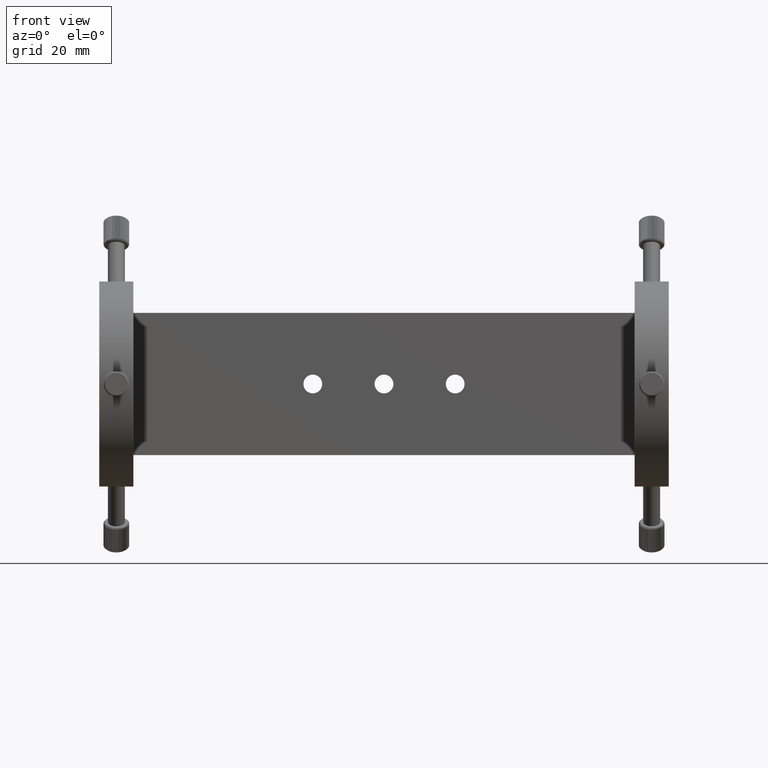
[diagram: clean part render]
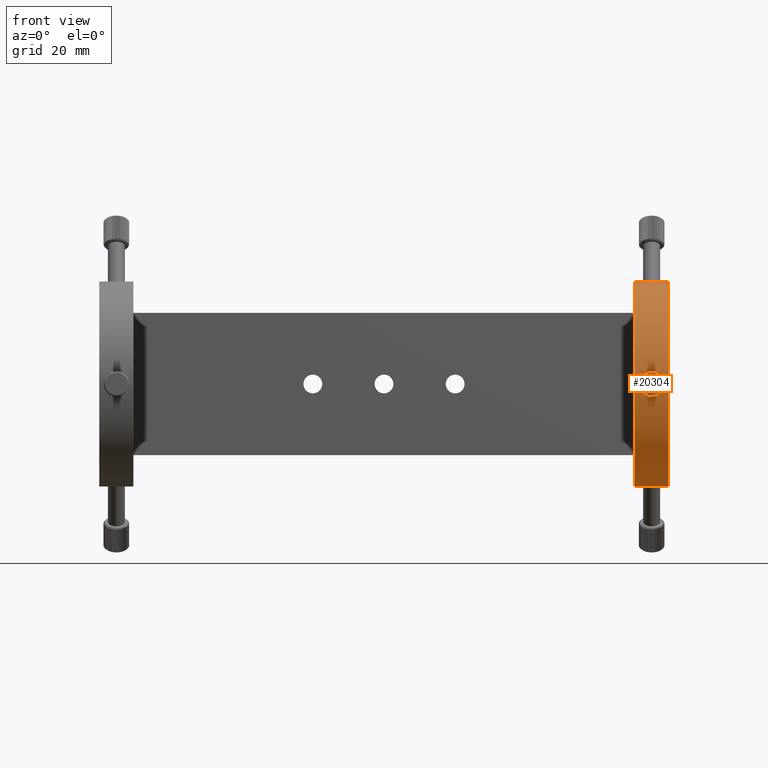
[diagram: same view with one face highlighted and labeled with its STEP entity id]
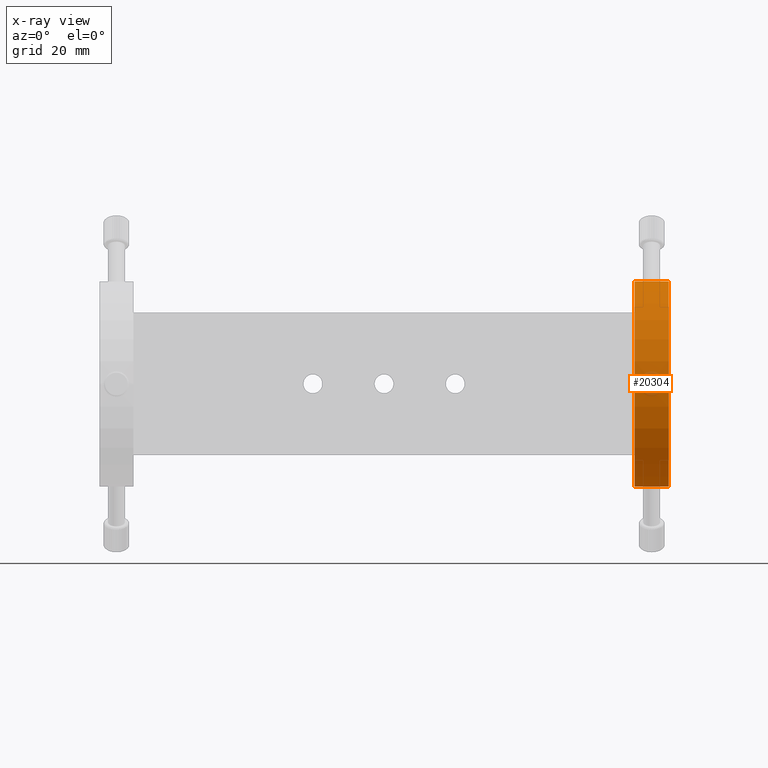
[diagram: x-ray of the same camera — body ghosted, the highlighted face saturated]
A machine part, front view. The second image highlights one B-rep face of the part: STEP entity #20304.
The next image is the same camera in x-ray: the body ghosted, the highlighted face saturated — about 5% of this face is hidden behind the body in this view.
In plain terms, the highlighted cylindrical surface (partial cylindrical patch) has radius 36 mm, axis along (1, -0, 0).
Its self-contained STEP definition (entity closure, byte-faithful):
#70 = CARTESIAN_POINT ( 'NONE',  ( 87.88329328273680100, -88.91181178230394300, -0.3289320257054857400 ) ) ;
#292 = CARTESIAN_POINT ( 'NONE',  ( 89.25973349342855600, -88.84279240741553000, -2.247428021355246200 ) ) ;
#891 = ORIENTED_EDGE ( 'NONE', *, *, #4037, .F. ) ;
#1830 = CARTESIAN_POINT ( 'NONE',  ( 90.03760790793434400, -88.82720209049182400, 2.483563216034591300 ) ) ;
#2150 = CARTESIAN_POINT ( 'NONE',  ( 92.61309516743131100, -88.89616692592505800, 1.109633475276993600 ) ) ;
#2415 = CARTESIAN_POINT ( 'NONE',  ( 92.78717414306528600, -88.90749267773375700, -0.6473099060676932300 ) ) ;
#3003 = CARTESIAN_POINT ( 'NONE',  ( 96.36693914623073500, -52.91295791704508400, 1.247613123922518600E-014 ) ) ;
#3021 = EDGE_LOOP ( 'NONE', ( #22834, #27357, #21886, #891 ) ) ;
#3974 = CARTESIAN_POINT ( 'NONE',  ( 84.36693914623069200, -52.91295791704509100, -35.99999999999998600 ) ) ;
#4037 = EDGE_CURVE ( 'NONE', #30437, #14291, #28616, .T. ) ;
#4407 = CARTESIAN_POINT ( 'NONE',  ( 90.19993888711789500, -88.82605678254677200, 2.499865975313860600 ) ) ;
#4864 = FACE_OUTER_BOUND ( 'NONE', #3021, .T. ) ;
#5126 = CARTESIAN_POINT ( 'NONE',  ( 92.73907458406569000, -88.90424996711708200, -0.8061193940071665900 ) ) ;
#5353 = CARTESIAN_POINT ( 'NONE',  ( 90.69320822322080700, -88.82716696889039600, -2.484073899411212100 ) ) ;
#6050 = DIRECTION ( 'NONE',  ( 0.0000000000000000000, 0.0000000000000000000, -1.000000000000000000 ) ) ;
#6173 = LINE ( 'NONE', #21972, #9761 ) ;
#6322 = EDGE_CURVE ( 'NONE', #25593, #17583, #6173, .T. ) ;
#6469 = CARTESIAN_POINT ( 'NONE',  ( 87.94671836446616500, -88.90749153796285500, 0.6477169415382245700 ) ) ;
#7126 = CARTESIAN_POINT ( 'NONE',  ( 91.47403016538423500, -88.84278820708300400, 2.247496420788219800 ) ) ;
#7593 = CARTESIAN_POINT ( 'NONE',  ( 90.53094874768251500, -88.82605153409085100, -2.499941370660880000 ) ) ;
#7610 = CIRCLE ( 'NONE', #16696, 36.00000000000003600 ) ;
#7825 = CARTESIAN_POINT ( 'NONE',  ( 89.71835201917218700, -88.83154586218924500, -2.419930633638406500 ) ) ;
#8077 = DIRECTION ( 'NONE',  ( -1.000000000000000000, 1.908848771941423400E-032, -5.551115123125761700E-017 ) ) ;
#8724 = CARTESIAN_POINT ( 'NONE',  ( 84.36693914623069200, -52.91295791704508400, 36.00000000000001400 ) ) ;
#8923 = VERTEX_POINT ( 'NONE', #14989 ) ;
#9074 = DIRECTION ( 'NONE',  ( 1.000000000000000000, -1.908848771941423400E-032, 5.551115123125761700E-017 ) ) ;
#9258 = CARTESIAN_POINT ( 'NONE',  ( 87.86693914623070600, -88.91295791704507700, 0.1631498488893484400 ) ) ;
#9272 = EDGE_CURVE ( 'NONE', #17583, #14291, #7610, .T. ) ;
#9584 = CARTESIAN_POINT ( 'NONE',  ( 89.55913214990584900, -88.83481355326652800, 2.371549571165726200 ) ) ;
#9629 = CARTESIAN_POINT ( 'NONE',  ( 92.86693914623069200, -88.91295791704509100, 1.230781437385125800E-014 ) ) ;
#9761 = VECTOR ( 'NONE', #17096, 1000.000000000000000 ) ;
#9895 = CARTESIAN_POINT ( 'NONE',  ( 87.86693914623070600, -88.91295791704507700, 1.169812476534160400E-014 ) ) ;
#10045 = CARTESIAN_POINT ( 'NONE',  ( 84.36693914623069200, -52.91295791704508400, 36.00000000000005000 ) ) ;
#10106 = EDGE_CURVE ( 'NONE', #8923, #12922, #13756, .T. ) ;
#10177 = CARTESIAN_POINT ( 'NONE',  ( 92.61354651345278900, -88.89619459137161100, -1.108877969106821300 ) ) ;
#10287 = CARTESIAN_POINT ( 'NONE',  ( 88.84252043599589400, -88.85813197001691300, -1.988134750782997400 ) ) ;
#10389 = CARTESIAN_POINT ( 'NONE',  ( 87.94722772903854500, -88.90745730486133900, -0.6493764010917568700 ) ) ;
#11555 = VECTOR ( 'NONE', #12699, 1000.000000000000000 ) ;
#11670 = CARTESIAN_POINT ( 'NONE',  ( 87.86693914623070600, -88.91295791704507700, 1.169812476534160400E-014 ) ) ;
#11783 = CARTESIAN_POINT ( 'NONE',  ( 87.88275613780099600, -88.91184883293674100, 0.3253315992489197500 ) ) ;
#11897 = CARTESIAN_POINT ( 'NONE',  ( 88.71309207276213700, -88.86392427792402800, 1.881846646252536300 ) ) ;
#12235 = CARTESIAN_POINT ( 'NONE',  ( 92.86693914623069200, -88.91295791704509100, 1.230781437385125800E-014 ) ) ;
#12342 = CARTESIAN_POINT ( 'NONE',  ( 90.52990229921566400, -88.82603823642155300, 2.500132394863291200 ) ) ;
#12450 = CARTESIAN_POINT ( 'NONE',  ( 92.01806056609754600, -88.86379819382042900, 1.884249345080869300 ) ) ;
#12601 = CARTESIAN_POINT ( 'NONE',  ( 92.53673800274855000, -88.89142123570964300, -1.252463694352009100 ) ) ;
#12699 = DIRECTION ( 'NONE',  ( 1.000000000000000000, -1.908848771941423400E-032, 5.551115123125761700E-017 ) ) ;
#12824 = CARTESIAN_POINT ( 'NONE',  ( 87.86693914623066300, -88.91295791704503400, -0.1631873744001392500 ) ) ;
#12922 = VERTEX_POINT ( 'NONE', #9895 ) ;
#13694 = CIRCLE ( 'NONE', #16150, 36.00000000000003600 ) ;
#13756 = B_SPLINE_CURVE_WITH_KNOTS ( 'NONE', 3,
 ( #9629, #30226, #32810, #2415, #5126, #10177, #12601, #30449, #22809, #15568, #17813, #30342, #32919, #30561, #17700, #5353, #7593, #25356, #28212, #7825, #15252, #292, #25458, #10287, #15348, #27887, #20261, #33013, #27995, #23130, #10389, #70, #12824, #25565 ),
 .UNSPECIFIED., .F., .F.,
 ( 4, 2, 2, 2, 2, 2, 2, 2, 2, 2, 2, 2, 2, 2, 2, 2, 4 ),
 ( 2.523894446711958700E-020, 0.0004886557414019533400, 0.0009773114828039066800, 0.001465967224205860400, 0.001954622965607814200, 0.002443278707009768100, 0.002931934448411722400, 0.003420590189813676800, 0.003909245931215631100, 0.004397901672617585000, 0.004886557414019538800, 0.005375213155421493600, 0.005863868896823448300, 0.006352524638225402200, 0.006841180379627356100, 0.007329836121029310900, 0.007818491862431263900 ),
 .UNSPECIFIED. ) ;
#14291 = VERTEX_POINT ( 'NONE', #32509 ) ;
#14572 = CARTESIAN_POINT ( 'NONE',  ( 92.53517267457901600, -88.89132518335303200, 1.255276878925644100 ) ) ;
#14730 = ORIENTED_EDGE ( 'NONE', *, *, #10106, .T. ) ;
#14989 = CARTESIAN_POINT ( 'NONE',  ( 92.86693914623069200, -88.91295791704509100, 1.230781437385125800E-014 ) ) ;
#15252 = CARTESIAN_POINT ( 'NONE',  ( 89.56248139005832300, -88.83473758383335900, -2.372695679454885500 ) ) ;
#15348 = CARTESIAN_POINT ( 'NONE',  ( 88.71625864207497600, -88.86377367074160800, -1.884806156109644700 ) ) ;
#15568 = CARTESIAN_POINT ( 'NONE',  ( 92.01906158776542100, -88.86384445498951800, -1.883368583144546400 ) ) ;
#15821 = CARTESIAN_POINT ( 'NONE',  ( 84.36693914623069200, -52.91295791704508400, 1.180999742445010300E-014 ) ) ;
#16150 = AXIS2_PLACEMENT_3D ( 'NONE', #15821, #18402, #6050 ) ;
#16448 = CARTESIAN_POINT ( 'NONE',  ( 89.25676760327238000, -88.84288473385085200, 2.245956067471770000 ) ) ;
#16696 = AXIS2_PLACEMENT_3D ( 'NONE', #3003, #8077, #28353 ) ;
#16714 = CARTESIAN_POINT ( 'NONE',  ( 84.36693914623069200, -52.91295791704508400, 1.180999742445010300E-014 ) ) ;
#16908 = CARTESIAN_POINT ( 'NONE',  ( 88.18151189596763100, -88.89226653774052500, 1.256955011885056500 ) ) ;
#17096 = DIRECTION ( 'NONE',  ( 1.000000000000000000, -1.908848771941423400E-032, 5.551115123125761700E-017 ) ) ;
#17128 = CARTESIAN_POINT ( 'NONE',  ( 92.35237960415281600, -88.88077197806134700, 1.528065071999605400 ) ) ;
#17346 = CARTESIAN_POINT ( 'NONE',  ( 92.86693914623066300, -88.91295791704511900, 0.3303926226988654900 ) ) ;
#17453 = CARTESIAN_POINT ( 'NONE',  ( 91.01237768200046200, -88.83149171407505700, 2.420730398038438900 ) ) ;
#17583 = VERTEX_POINT ( 'NONE', #19577 ) ;
#17700 = CARTESIAN_POINT ( 'NONE',  ( 91.01597434386449900, -88.83154930085102300, -2.419881807148537500 ) ) ;
#17813 = CARTESIAN_POINT ( 'NONE',  ( 91.89321029473934700, -88.85820595355855300, -1.986836990803441600 ) ) ;
#18402 = DIRECTION ( 'NONE',  ( -1.000000000000000000, 1.908848771941423400E-032, -5.551115123125761700E-017 ) ) ;
#19559 = CARTESIAN_POINT ( 'NONE',  ( 91.61765797550236800, -88.84756343191911300, 2.170795086085743500 ) ) ;
#19571 = AXIS2_PLACEMENT_3D ( 'NONE', #16714, #9074, #32050 ) ;
#19577 = CARTESIAN_POINT ( 'NONE',  ( 96.36693914623073500, -52.91295791704509100, -35.99999999999998600 ) ) ;
#19781 = CARTESIAN_POINT ( 'NONE',  ( 90.69284400641292600, -88.82717088632537600, 2.484011389980640400 ) ) ;
#20189 = EDGE_CURVE ( 'NONE', #25593, #30437, #13694, .T. ) ;
#20261 = CARTESIAN_POINT ( 'NONE',  ( 88.37928841192547200, -88.88089625636446600, -1.525045719898567000 ) ) ;
#20304 = ADVANCED_FACE ( 'NONE', ( #29531, #4864 ), #24367, .T. ) ;
#21886 = ORIENTED_EDGE ( 'NONE', *, *, #9272, .T. ) ;
#21972 = CARTESIAN_POINT ( 'NONE',  ( 84.36693914623069200, -52.91295791704509100, -36.00000000000002800 ) ) ;
#22196 = EDGE_LOOP ( 'NONE', ( #14730, #31688 ) ) ;
#22552 = CARTESIAN_POINT ( 'NONE',  ( 89.71805040784202800, -88.83155382613154000, 2.419811711218513100 ) ) ;
#22809 = CARTESIAN_POINT ( 'NONE',  ( 92.24969400401629100, -88.87518115417051900, -1.652821807480568700 ) ) ;
#22834 = ORIENTED_EDGE ( 'NONE', *, *, #20189, .F. ) ;
#23130 = CARTESIAN_POINT ( 'NONE',  ( 87.99450002554428400, -88.90427003297489300, -0.8052380656970925500 ) ) ;
#24367 = CYLINDRICAL_SURFACE ( 'NONE', #19571, 36.00000000000003600 ) ;
#24664 = CARTESIAN_POINT ( 'NONE',  ( 92.80050165254328900, -88.90818928583593100, 0.6586249403062260900 ) ) ;
#24780 = CARTESIAN_POINT ( 'NONE',  ( 91.17096516560506800, -88.83472724966664200, 2.372853313273970000 ) ) ;
#25356 = CARTESIAN_POINT ( 'NONE',  ( 90.20472181628851200, -88.82604339378264100, -2.500058308115350700 ) ) ;
#25458 = CARTESIAN_POINT ( 'NONE',  ( 89.11338646820553300, -88.84766369865556600, -2.169132977666611900 ) ) ;
#25565 = CARTESIAN_POINT ( 'NONE',  ( 87.86693914623070600, -88.91295791704507700, 1.169812476534160400E-014 ) ) ;
#25593 = VERTEX_POINT ( 'NONE', #3974 ) ;
#25607 = EDGE_CURVE ( 'NONE', #12922, #8923, #27387, .T. ) ;
#27112 = CARTESIAN_POINT ( 'NONE',  ( 88.36763641919625900, -88.88092004932110500, 1.535908973670792300 ) ) ;
#27357 = ORIENTED_EDGE ( 'NONE', *, *, #6322, .T. ) ;
#27387 = B_SPLINE_CURVE_WITH_KNOTS ( 'NONE', 3,
 ( #11670, #9258, #11783, #6469, #29542, #16908, #27112, #11897, #29653, #31694, #16448, #9584, #22552, #1830, #4407, #12342, #19781, #17453, #24780, #7126, #19559, #32233, #12450, #27422, #17128, #14572, #2150, #24664, #17346, #12235 ),
 .UNSPECIFIED., .F., .F.,
 ( 4, 2, 2, 2, 2, 2, 2, 2, 2, 2, 2, 2, 2, 2, 4 ),
 ( 0.007818491862431263900, 0.008307035235726453100, 0.008795578609021642200, 0.009772665355612036200, 0.01026120872890723400, 0.01074975210220243200, 0.01123829547549763000, 0.01172683884879282800, 0.01221538222208802700, 0.01270392559538322300, 0.01319246896867842300, 0.01368101234197361900, 0.01416955571526881700, 0.01465809908856401500, 0.01563518583515442400 ),
 .UNSPECIFIED. ) ;
#27422 = CARTESIAN_POINT ( 'NONE',  ( 92.24886335070570500, -88.87513740292244800, 1.653771092440517300 ) ) ;
#27887 = CARTESIAN_POINT ( 'NONE',  ( 88.48280036435389200, -88.87524908680798300, -1.651442225309834400 ) ) ;
#27995 = CARTESIAN_POINT ( 'NONE',  ( 88.11997141435482200, -88.89621714175959300, -1.108156909340758800 ) ) ;
#28212 = CARTESIAN_POINT ( 'NONE',  ( 90.03903902786979100, -88.82718647898541100, -2.483789654013892600 ) ) ;
#28353 = DIRECTION ( 'NONE',  ( 0.0000000000000000000, 0.0000000000000000000, -1.000000000000000000 ) ) ;
#28616 = LINE ( 'NONE', #10045, #11555 ) ;
#29531 = FACE_BOUND ( 'NONE', #22196, .T. ) ;
#29542 = CARTESIAN_POINT ( 'NONE',  ( 87.99471922098582900, -88.90425640033120700, 0.8056548071568504500 ) ) ;
#29653 = CARTESIAN_POINT ( 'NONE',  ( 88.84156319494724100, -88.85817099047858400, 1.987444353118178000 ) ) ;
#30226 = CARTESIAN_POINT ( 'NONE',  ( 92.86693914623069200, -88.91295791704509100, -0.1652343075597082200 ) ) ;
#30342 = CARTESIAN_POINT ( 'NONE',  ( 91.61989632803639000, -88.84763830364575200, -2.169590548319268100 ) ) ;
#30437 = VERTEX_POINT ( 'NONE', #8724 ) ;
#30449 = CARTESIAN_POINT ( 'NONE',  ( 92.35527945039125100, -88.88093385203332300, -1.524203142060309500 ) ) ;
#30561 = CARTESIAN_POINT ( 'NONE',  ( 91.17358315962413000, -88.83479059618088100, -2.371885060027196800 ) ) ;
#31688 = ORIENTED_EDGE ( 'NONE', *, *, #25607, .T. ) ;
#31694 = CARTESIAN_POINT ( 'NONE',  ( 89.11327249898742800, -88.84766608566933100, 2.169107371036541800 ) ) ;
#32050 = DIRECTION ( 'NONE',  ( 0.0000000000000000000, 0.0000000000000000000, 1.000000000000000000 ) ) ;
#32233 = CARTESIAN_POINT ( 'NONE',  ( 91.88933089430737800, -88.85804454309638300, 1.989716628330960900 ) ) ;
#32509 = CARTESIAN_POINT ( 'NONE',  ( 96.36693914623073500, -52.91295791704508400, 36.00000000000001400 ) ) ;
#32810 = CARTESIAN_POINT ( 'NONE',  ( 92.85071894586938900, -88.91182119481564400, -0.3276972097888704600 ) ) ;
#32919 = CARTESIAN_POINT ( 'NONE',  ( 91.47443259194179200, -88.84280526149919400, -2.247214179830351100 ) ) ;
#33013 = CARTESIAN_POINT ( 'NONE',  ( 88.19824246860082400, -88.89135529962817400, -1.254302439526567400 ) ) ;